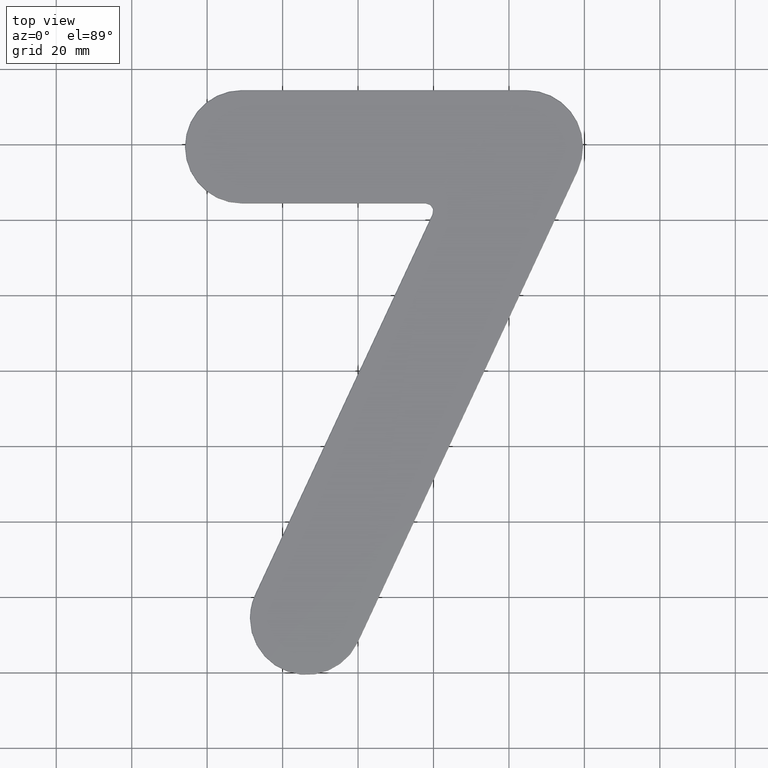
[diagram: clean part render]
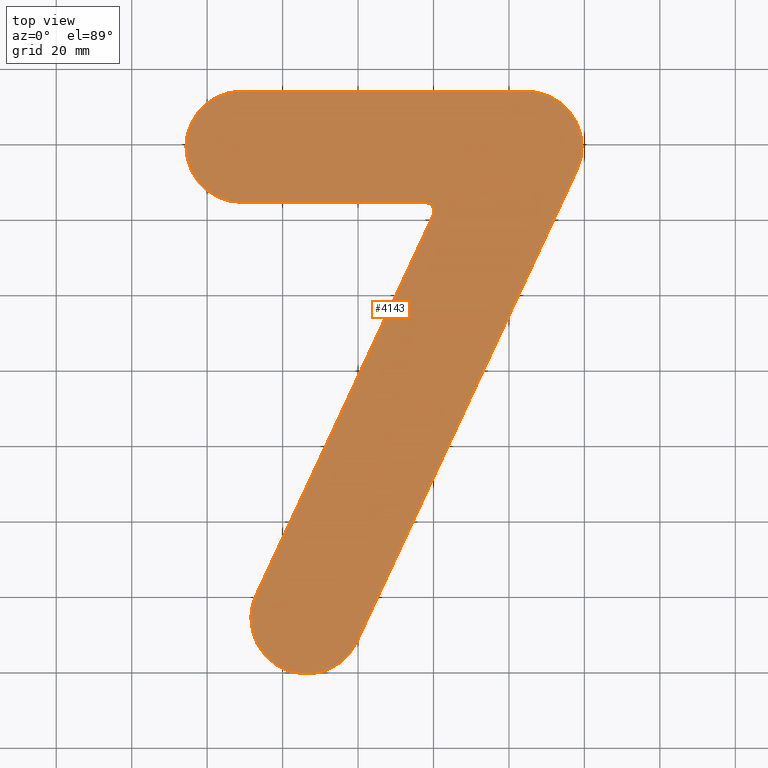
[diagram: same view with one face highlighted and labeled with its STEP entity id]
A machine part, top view. The second image highlights one B-rep face of the part: STEP entity #4143.
In plain terms, the highlighted planar face has unit normal (0, 0, -1).
Its self-contained STEP definition (entity closure, byte-faithful):
#329 = DIRECTION ( 'NONE',  ( 1.000000000000000000, 0.000000000000000000, 0.000000000000000000 ) ) ;
#431 = CARTESIAN_POINT ( 'NONE',  ( 39.98226890532102829, 120.6437257166331420, 2.000000000000000000 ) ) ;
#727 = FACE_OUTER_BOUND ( 'NONE', #4220, .T. ) ;
#739 = CIRCLE ( 'NONE', #4005, 2.250000000000008882 ) ;
#1160 = ORIENTED_EDGE ( 'NONE', *, *, #5289, .T. ) ;
#1510 = DIRECTION ( 'NONE',  ( -1.000000000000000000, 0.000000000000000000, 0.000000000000000000 ) ) ;
#2139 = VERTEX_POINT ( 'NONE', #17196 ) ;
#2278 = ORIENTED_EDGE ( 'NONE', *, *, #37870, .T. ) ;
#2508 = VERTEX_POINT ( 'NONE', #32062 ) ;
#2755 = VERTEX_POINT ( 'NONE', #13027 ) ;
#3269 = VECTOR ( 'NONE', #329, 1000.000000000000000 ) ;
#3612 = DIRECTION ( 'NONE',  ( 0.000000000000000000, 0.000000000000000000, 1.000000000000000000 ) ) ;
#3620 = CARTESIAN_POINT ( 'NONE',  ( -10.87226880451396838, 153.3446168055497481, 2.000000000000000000 ) ) ;
#4005 = AXIS2_PLACEMENT_3D ( 'NONE', #15263, #6160, #32806 ) ;
#4143 = ADVANCED_FACE ( 'NONE', ( #727 ), #24250, .F. ) ;
#4220 = EDGE_LOOP ( 'NONE', ( #17317, #10465, #23146, #11043, #29131, #18316, #2278, #12422, #1160, #26227 ) ) ;
#4432 = CARTESIAN_POINT ( 'NONE',  ( 64.62773119548602097, 138.5946168055497481, 2.000000000000000000 ) ) ;
#4615 = LINE ( 'NONE', #38313, #3269 ) ;
#5289 = EDGE_CURVE ( 'NONE', #2139, #2508, #9898, .T. ) ;
#6160 = DIRECTION ( 'NONE',  ( -0.000000000000000000, -0.000000000000000000, -1.000000000000000000 ) ) ;
#6610 = DIRECTION ( 'NONE',  ( -1.000000000000000000, 0.000000000000000000, 0.000000000000000000 ) ) ;
#6979 = VERTEX_POINT ( 'NONE', #16735 ) ;
#7043 = DIRECTION ( 'NONE',  ( 0.000000000000000000, 0.000000000000000000, 1.000000000000000000 ) ) ;
#7444 = VERTEX_POINT ( 'NONE', #431 ) ;
#7546 = CARTESIAN_POINT ( 'NONE',  ( -25.62226880451397903, 138.5946168055497196, 2.000000000000000000 ) ) ;
#8231 = AXIS2_PLACEMENT_3D ( 'NONE', #37963, #29041, #35136 ) ;
#8533 = EDGE_CURVE ( 'NONE', #20286, #6979, #24972, .T. ) ;
#9156 = CARTESIAN_POINT ( 'NONE',  ( -10.87226880451397371, 138.5946168055497196, 2.000000000000000000 ) ) ;
#9652 = CARTESIAN_POINT ( 'NONE',  ( -10.87226880451397371, 138.5946168055497196, 2.000000000000000000 ) ) ;
#9787 = DIRECTION ( 'NONE',  ( -1.000000000000000000, 0.000000000000000000, 0.000000000000000000 ) ) ;
#9898 = CIRCLE ( 'NONE', #8231, 14.75000000000000000 ) ;
#10108 = AXIS2_PLACEMENT_3D ( 'NONE', #29865, #32355, #26490 ) ;
#10465 = ORIENTED_EDGE ( 'NONE', *, *, #32438, .T. ) ;
#11043 = ORIENTED_EDGE ( 'NONE', *, *, #22939, .T. ) ;
#11754 = EDGE_CURVE ( 'NONE', #21412, #17737, #21212, .T. ) ;
#12422 = ORIENTED_EDGE ( 'NONE', *, *, #22852, .T. ) ;
#13027 = CARTESIAN_POINT ( 'NONE',  ( 37.94307638448856324, 123.8446168055497481, 2.000000000000000000 ) ) ;
#13879 = AXIS2_PLACEMENT_3D ( 'NONE', #9156, #29878, #6610 ) ;
#15242 = EDGE_CURVE ( 'NONE', #2755, #7444, #739, .T. ) ;
#15263 = CARTESIAN_POINT ( 'NONE',  ( 37.94307638448856324, 121.5946168055497196, 2.000000000000000000 ) ) ;
#15279 = AXIS2_PLACEMENT_3D ( 'NONE', #16197, #19178, #1510 ) ;
#15583 = CIRCLE ( 'NONE', #10108, 14.75000000000000000 ) ;
#15651 = DIRECTION ( 'NONE',  ( -1.000000000000000000, 0.000000000000000000, 0.000000000000000000 ) ) ;
#16197 = CARTESIAN_POINT ( 'NONE',  ( -10.87226880451397371, 138.5946168055497196, 2.000000000000000000 ) ) ;
#16421 = EDGE_CURVE ( 'NONE', #2508, #20286, #22747, .T. ) ;
#16517 = CARTESIAN_POINT ( 'NONE',  ( 37.77492360236207247, 115.9100584384834605, 2.000000000000000000 ) ) ;
#16735 = CARTESIAN_POINT ( 'NONE',  ( 64.62773119548602097, 153.3446168055497196, 2.000000000000000000 ) ) ;
#17196 = CARTESIAN_POINT ( 'NONE',  ( -8.410726073889449594, 13.59461680554971608, 2.000000000000000000 ) ) ;
#17317 = ORIENTED_EDGE ( 'NONE', *, *, #8533, .T. ) ;
#17516 = DIRECTION ( 'NONE',  ( 0.4226182617407032716, 0.9063077870366481603, 0.000000000000000000 ) ) ;
#17737 = VERTEX_POINT ( 'NONE', #7546 ) ;
#18316 = ORIENTED_EDGE ( 'NONE', *, *, #15242, .T. ) ;
#18788 = CARTESIAN_POINT ( 'NONE',  ( -10.87226880451397371, 123.8446168055497054, 2.000000000000000000 ) ) ;
#19178 = DIRECTION ( 'NONE',  ( 0.000000000000000000, 0.000000000000000000, 1.000000000000000000 ) ) ;
#20286 = VERTEX_POINT ( 'NONE', #37635 ) ;
#21212 = CIRCLE ( 'NONE', #15279, 14.75000000000000533 ) ;
#21382 = EDGE_CURVE ( 'NONE', #34352, #2755, #4615, .T. ) ;
#21412 = VERTEX_POINT ( 'NONE', #29420 ) ;
#22426 = AXIS2_PLACEMENT_3D ( 'NONE', #4432, #7043, #15651 ) ;
#22747 = LINE ( 'NONE', #35245, #38066 ) ;
#22852 = EDGE_CURVE ( 'NONE', #35641, #2139, #15583, .T. ) ;
#22939 = EDGE_CURVE ( 'NONE', #17737, #34352, #38295, .T. ) ;
#23146 = ORIENTED_EDGE ( 'NONE', *, *, #11754, .T. ) ;
#23675 = VECTOR ( 'NONE', #24243, 1000.000000000000000 ) ;
#23938 = LINE ( 'NONE', #16517, #31400 ) ;
#24243 = DIRECTION ( 'NONE',  ( -1.000000000000000000, 3.676235180878001829E-16, 0.000000000000000000 ) ) ;
#24250 = PLANE ( 'NONE',  #13879 ) ;
#24972 = CIRCLE ( 'NONE', #22426, 14.75000000000000000 ) ;
#25425 = DIRECTION ( 'NONE',  ( -0.4226182617407033271, -0.9063077870366481603, 0.000000000000000000 ) ) ;
#25952 = AXIS2_PLACEMENT_3D ( 'NONE', #9652, #3612, #9787 ) ;
#26227 = ORIENTED_EDGE ( 'NONE', *, *, #16421, .T. ) ;
#26490 = DIRECTION ( 'NONE',  ( -1.000000000000000000, 2.704992538811292459E-15, 0.000000000000000000 ) ) ;
#29041 = DIRECTION ( 'NONE',  ( 0.000000000000000000, 0.000000000000000000, 1.000000000000000000 ) ) ;
#29131 = ORIENTED_EDGE ( 'NONE', *, *, #21382, .T. ) ;
#29420 = CARTESIAN_POINT ( 'NONE',  ( -10.87226880451397371, 153.3446168055497196, 2.000000000000000000 ) ) ;
#29865 = CARTESIAN_POINT ( 'NONE',  ( 6.339273926110548629, 13.59461680554971608, 2.000000000000000000 ) ) ;
#29878 = DIRECTION ( 'NONE',  ( -0.000000000000000000, 0.000000000000000000, -1.000000000000000000 ) ) ;
#31064 = CARTESIAN_POINT ( 'NONE',  ( -7.028765932680011375, 19.82823616622510343, 2.000000000000000000 ) ) ;
#31400 = VECTOR ( 'NONE', #25425, 1000.000000000000114 ) ;
#31613 = LINE ( 'NONE', #3620, #23675 ) ;
#32062 = CARTESIAN_POINT ( 'NONE',  ( 19.70731378490110686, 7.360997444874340268, 2.000000000000000000 ) ) ;
#32355 = DIRECTION ( 'NONE',  ( 0.000000000000000000, 0.000000000000000000, 1.000000000000000000 ) ) ;
#32438 = EDGE_CURVE ( 'NONE', #6979, #21412, #31613, .T. ) ;
#32806 = DIRECTION ( 'NONE',  ( -1.000000000000000000, 0.000000000000000000, 0.000000000000000000 ) ) ;
#34352 = VERTEX_POINT ( 'NONE', #18788 ) ;
#35136 = DIRECTION ( 'NONE',  ( -1.000000000000000000, 0.000000000000000000, 0.000000000000000000 ) ) ;
#35245 = CARTESIAN_POINT ( 'NONE',  ( 64.51100331994319959, 103.4428197171327071, 2.000000000000000000 ) ) ;
#35641 = VERTEX_POINT ( 'NONE', #31064 ) ;
#37635 = CARTESIAN_POINT ( 'NONE',  ( 77.99577105427658807, 132.3609974448743571, 2.000000000000000000 ) ) ;
#37870 = EDGE_CURVE ( 'NONE', #7444, #35641, #23938, .T. ) ;
#37963 = CARTESIAN_POINT ( 'NONE',  ( 6.339273926110548629, 13.59461680554971608, 2.000000000000000000 ) ) ;
#38066 = VECTOR ( 'NONE', #17516, 1000.000000000000114 ) ;
#38295 = CIRCLE ( 'NONE', #25952, 14.75000000000000533 ) ;
#38313 = CARTESIAN_POINT ( 'NONE',  ( -10.87226880451397371, 123.8446168055497481, 2.000000000000000000 ) ) ;